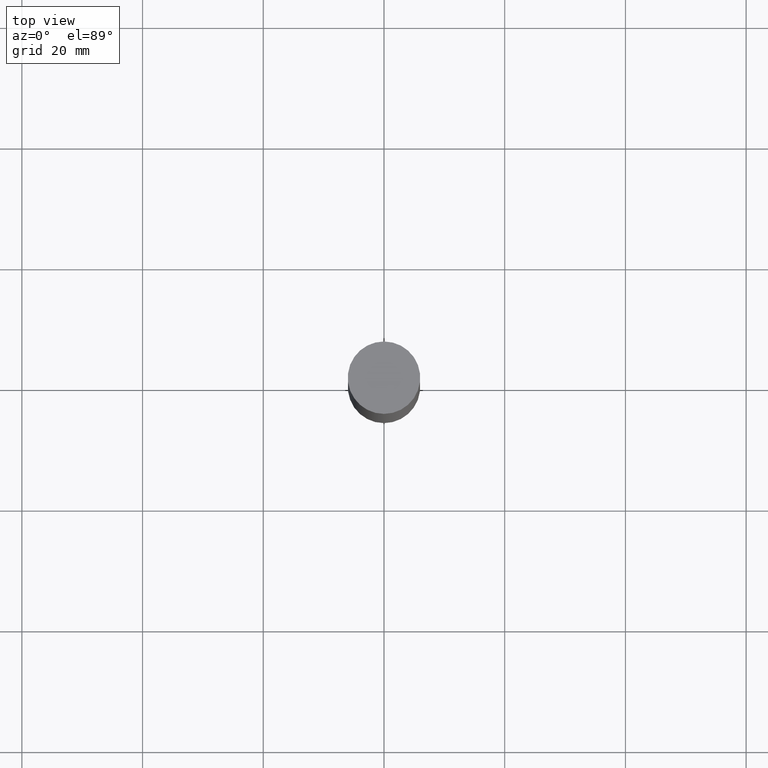
[diagram: clean part render]
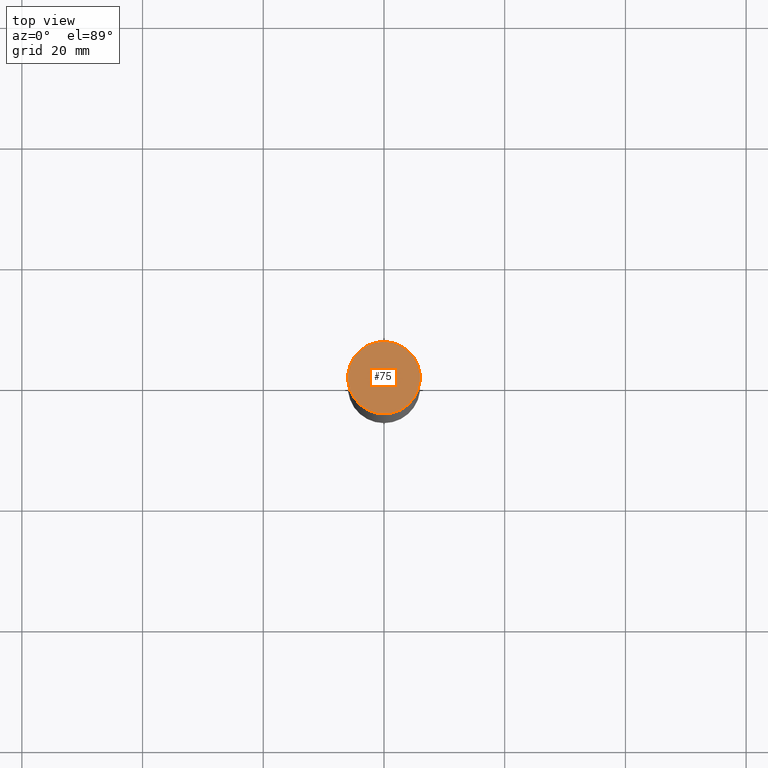
[diagram: same view with one face highlighted and labeled with its STEP entity id]
A machine part, top view. The second image highlights one B-rep face of the part: STEP entity #75.
In plain terms, the highlighted planar face has unit normal (-0, -0, 1).
Its self-contained STEP definition (entity closure, byte-faithful):
#75=ADVANCED_FACE('',(#82),#83,.T.);
#82=FACE_OUTER_BOUND('',#98,.T.);
#83=PLANE('',#99);
#98=EDGE_LOOP('',(#114));
#99=AXIS2_PLACEMENT_3D('',#115,#116,#117);
#114=ORIENTED_EDGE('',*,*,#142,.F.);
#115=CARTESIAN_POINT('',(-7.34788079488412E-015,2.99999999999999,120.0));
#116=DIRECTION('',(-6.12323399573677E-017,-1.22464679914735E-016,1.0));
#117=DIRECTION('',(1.23259516440783E-032,-1.0,-1.22464679914735E-016));
#142=EDGE_CURVE('',#147,#147,#148,.T.);
#147=VERTEX_POINT('',#157);
#148=CIRCLE('',#158,6.0);
#157=CARTESIAN_POINT('',(-7.34788079488412E-015,5.99999999999998,120.0));
#158=AXIS2_PLACEMENT_3D('',#167,#168,#169);
#167=CARTESIAN_POINT('',(-7.34788079488412E-015,-1.46957615897682E-014,120.0));
#168=DIRECTION('',(6.12323399573677E-017,1.22464679914735E-016,-1.0));
#169=DIRECTION('',(-1.23259516440783E-032,1.0,1.22464679914735E-016));